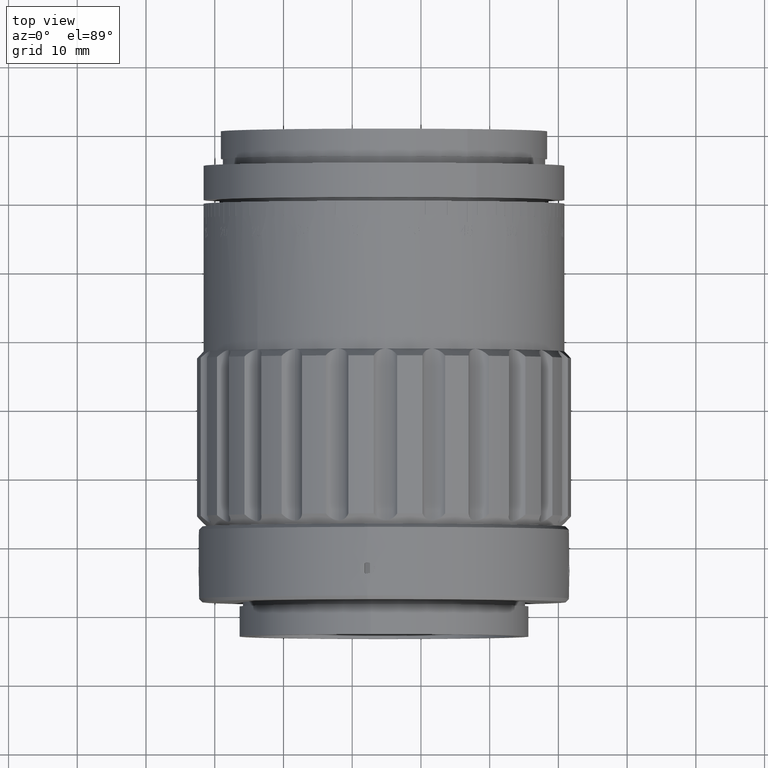
[diagram: clean part render]
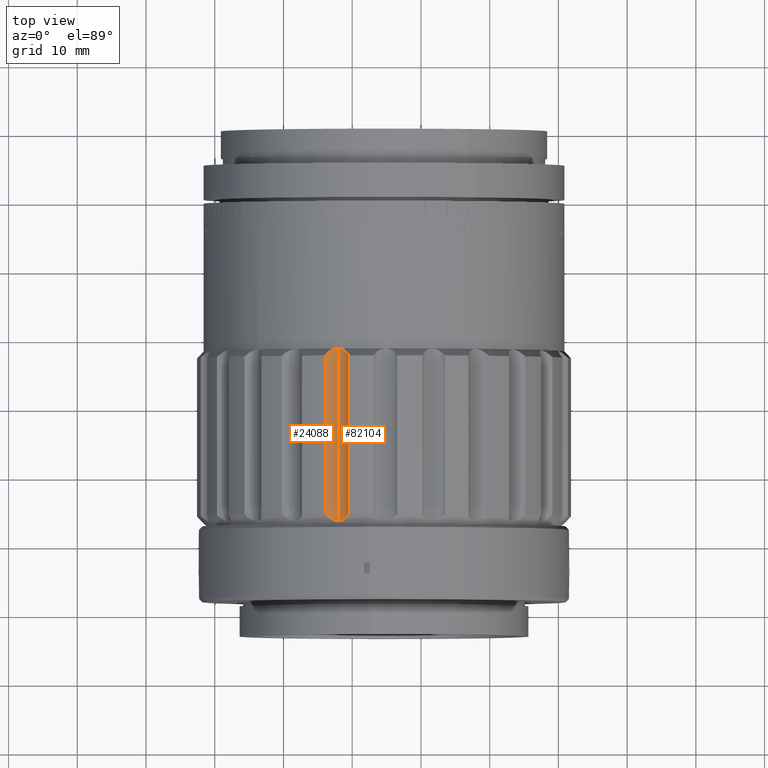
[diagram: same view with one multi-face feature highlighted, each face labeled with its STEP entity id]
A machine part, top view. The highlighted faces form ONE feature: a constant-radius fillet chain: 2 tangent blend faces with common blend radius 2 mm. The faces share edges in the B-rep.
Their STEP definitions:
[1] entity #82104 (Cylinder):
#312 = CARTESIAN_POINT ( 'NONE',  ( -14.50958583724884800, -27.69496217823255100, -22.49654680344675800 ) ) ;
#465 = VECTOR ( 'NONE', #14624, 1000.000000000000000 ) ;
#626 = CARTESIAN_POINT ( 'NONE',  ( -14.51084309510918400, -3.735120404520084800, -22.49683610694331600 ) ) ;
#908 = CARTESIAN_POINT ( 'NONE',  ( -13.83508696474228600, -3.364387262749404300, -22.48436378671806000 ) ) ;
#1470 = CARTESIAN_POINT ( 'NONE',  ( -13.83428109412283300, -28.06509218753951300, -22.48448051987046600 ) ) ;
#7043 = CARTESIAN_POINT ( 'NONE',  ( -13.74359099961318600, -28.09950435885614400, -22.49974652857751100 ) ) ;
#7341 = CARTESIAN_POINT ( 'NONE',  ( -14.35069158910880600, -3.626543446999199700, -22.47081936244077500 ) ) ;
#11193 = DIRECTION ( 'NONE',  ( 0.4999999999999946700, 0.0000000000000000000, 0.8660254037844418200 ) ) ;
#11850 = B_SPLINE_CURVE_WITH_KNOTS ( 'NONE', 3,
 ( #14065, #14635, #48126, #626, #7341, #53994, #40850, #908, #14358, #34427, #84031, #37615, #40755, #62617 ),
 .UNSPECIFIED., .F., .F.,
 ( 4, 2, 2, 2, 2, 2, 4 ),
 ( 2.979895395361943100E-007, 0.0005735843058146325400, 0.001146870622089729000, 0.001433513780227277300, 0.001720156938364825800, 0.002006800096502373800, 0.002293443254639922500 ),
 .UNSPECIFIED. ) ;
#14065 = CARTESIAN_POINT ( 'NONE',  ( -15.07094563514938200, -4.214578211897617200, -22.70306361842762000 ) ) ;
#14358 = CARTESIAN_POINT ( 'NONE',  ( -13.74427288286509500, -3.329889188454534300, -22.49960830672950600 ) ) ;
#14624 = DIRECTION ( 'NONE',  ( -0.0000000000000000000, 1.000000000000000000, -0.0000000000000000000 ) ) ;
#14635 = CARTESIAN_POINT ( 'NONE',  ( -14.94273114513976500, -4.086325021261123100, -22.63423652695954800 ) ) ;
#14906 = CARTESIAN_POINT ( 'NONE',  ( -14.09630680224473800, -27.94445593749853900, -22.46365720843577000 ) ) ;
#18173 = LINE ( 'NONE', #43413, #80708 ) ;
#18597 = EDGE_CURVE ( 'NONE', #83007, #55120, #51603, .T. ) ;
#20476 = CARTESIAN_POINT ( 'NONE',  ( -13.29152127467205300, -28.21457821189758200, -22.63702574658388800 ) ) ;
#20645 = EDGE_CURVE ( 'NONE', #21286, #32390, #18173, .T. ) ;
#21286 = VERTEX_POINT ( 'NONE', #77005 ) ;
#21976 = CARTESIAN_POINT ( 'NONE',  ( -15.07094563514938000, -27.21457821189765600, -22.70306361842762400 ) ) ;
#23204 = EDGE_LOOP ( 'NONE', ( #64703, #25300, #43904, #29746 ) ) ;
#25300 = ORIENTED_EDGE ( 'NONE', *, *, #20645, .T. ) ;
#29746 = ORIENTED_EDGE ( 'NONE', *, *, #18597, .T. ) ;
#30668 = B_SPLINE_CURVE_WITH_KNOTS ( 'NONE', 3,
 ( #74672, #20476, #41397, #7043, #1470, #74094, #14906, #48098, #312, #54813, #53679, #61521 ),
 .UNSPECIFIED., .F., .F.,
 ( 4, 2, 2, 2, 2, 4 ),
 ( 0.002293443254639914200, 0.002866010891116022600, 0.003152294709354078000, 0.003438578527592133500, 0.004011146164068248700, 0.004583713800544364800 ),
 .UNSPECIFIED. ) ;
#30998 = CARTESIAN_POINT ( 'NONE',  ( -14.12499999999989300, -2.714578211897591900, -24.46521765691053600 ) ) ;
#32390 = VERTEX_POINT ( 'NONE', #66489 ) ;
#34427 = CARTESIAN_POINT ( 'NONE',  ( -13.56429122097070600, -3.273849528159988000, -22.54319296394730200 ) ) ;
#36241 = CYLINDRICAL_SURFACE ( 'NONE', #62111, 2.000000000000002200 ) ;
#37615 = CARTESIAN_POINT ( 'NONE',  ( -13.29654098636848000, -3.222243727743241900, -22.64234901309484700 ) ) ;
#40755 = CARTESIAN_POINT ( 'NONE',  ( -13.20836514505575100, -3.214578211897683300, -22.68503596040262900 ) ) ;
#40850 = CARTESIAN_POINT ( 'NONE',  ( -14.01117599504014800, -3.441932837596967300, -22.46649913771787900 ) ) ;
#41397 = CARTESIAN_POINT ( 'NONE',  ( -13.47401003275854100, -28.18336728292409500, -22.56510966258573700 ) ) ;
#43413 = CARTESIAN_POINT ( 'NONE',  ( -13.12499999999990200, -2.714578211897591900, -22.73316684934165000 ) ) ;
#43904 = ORIENTED_EDGE ( 'NONE', *, *, #82333, .T. ) ;
#44636 = CARTESIAN_POINT ( 'NONE',  ( -15.07094563514938200, -4.214578211897617200, -22.70306361842762000 ) ) ;
#48098 = CARTESIAN_POINT ( 'NONE',  ( -14.34841600653563100, -27.80398875942939400, -22.47063614641581400 ) ) ;
#48126 = CARTESIAN_POINT ( 'NONE',  ( -14.80571327722569900, -3.964274970068866600, -22.57841341308889600 ) ) ;
#50958 = DIRECTION ( 'NONE',  ( 0.0000000000000000000, -1.000000000000000000, 0.0000000000000000000 ) ) ;
#51099 = DIRECTION ( 'NONE',  ( 0.0000000000000000000, -1.000000000000000000, 0.0000000000000000000 ) ) ;
#51603 = LINE ( 'NONE', #81668, #465 ) ;
#53679 = CARTESIAN_POINT ( 'NONE',  ( -14.94275761573031100, -27.34280492395364000, -22.63425073669322500 ) ) ;
#53994 = CARTESIAN_POINT ( 'NONE',  ( -14.09729258263544000, -3.485196456495964300, -22.46362513803483200 ) ) ;
#54813 = CARTESIAN_POINT ( 'NONE',  ( -14.80555749630510600, -27.46505317721100100, -22.57831207111323500 ) ) ;
#55120 = VERTEX_POINT ( 'NONE', #44636 ) ;
#56070 = EDGE_CURVE ( 'NONE', #55120, #21286, #11850, .T. ) ;
#61521 = CARTESIAN_POINT ( 'NONE',  ( -15.07094563514938000, -27.21457821189765600, -22.70306361842762400 ) ) ;
#62111 = AXIS2_PLACEMENT_3D ( 'NONE', #30998, #51099, #11193 ) ;
#62617 = CARTESIAN_POINT ( 'NONE',  ( -13.12499999999990400, -3.214578211897682400, -22.73316684934165000 ) ) ;
#64703 = ORIENTED_EDGE ( 'NONE', *, *, #56070, .T. ) ;
#66489 = CARTESIAN_POINT ( 'NONE',  ( -13.12499999999990200, -28.21457821189758900, -22.73316684934165000 ) ) ;
#73842 = FACE_OUTER_BOUND ( 'NONE', #23204, .T. ) ;
#74094 = CARTESIAN_POINT ( 'NONE',  ( -14.01042454763575800, -27.98758608644783400, -22.46654070602538100 ) ) ;
#74672 = CARTESIAN_POINT ( 'NONE',  ( -13.12499999999990200, -28.21457821189758900, -22.73316684934165000 ) ) ;
#77005 = CARTESIAN_POINT ( 'NONE',  ( -13.12499999999990400, -3.214578211897682400, -22.73316684934165000 ) ) ;
#80708 = VECTOR ( 'NONE', #50958, 1000.000000000000000 ) ;
#81668 = CARTESIAN_POINT ( 'NONE',  ( -15.07094563514937700, -15.71457821189758900, -22.70306361842762000 ) ) ;
#82104 = ADVANCED_FACE ( 'NONE', ( #73842 ), #36241, .F. ) ;
#82333 = EDGE_CURVE ( 'NONE', #32390, #83007, #30668, .T. ) ;
#83007 = VERTEX_POINT ( 'NONE', #21976 ) ;
#84031 = CARTESIAN_POINT ( 'NONE',  ( -13.47473048354721900, -3.252025529498176600, -22.57145315575259700 ) ) ;
[2] entity #24088 (Cylinder):
#375 = CARTESIAN_POINT ( 'NONE',  ( -12.12595701971760900, -27.21457821189765600, -24.40335358830752100 ) ) ;
#3159 = EDGE_CURVE ( 'NONE', #54061, #34607, #54388, .T. ) ;
#4182 = CARTESIAN_POINT ( 'NONE',  ( -12.45138271275700200, -3.441570337347438400, -23.36665392907049800 ) ) ;
#6230 = CARTESIAN_POINT ( 'NONE',  ( -12.15062295426916200, -27.46488145372640900, -24.11133052577059400 ) ) ;
#6510 = EDGE_CURVE ( 'NONE', #21286, #54061, #54984, .T. ) ;
#7681 = CARTESIAN_POINT ( 'NONE',  ( -13.04163485494406100, -28.21457821189758900, -22.78129773828067100 ) ) ;
#8540 = CARTESIAN_POINT ( 'NONE',  ( -12.74083217870735600, -28.15530689563528100, -23.01861726366467300 ) ) ;
#10917 = CARTESIAN_POINT ( 'NONE',  ( -12.28593373872485900, -3.625167664365871500, -23.66141083893516800 ) ) ;
#15255 = CARTESIAN_POINT ( 'NONE',  ( -13.12499999999990200, -28.21457821189758900, -22.73316684934165000 ) ) ;
#18173 = LINE ( 'NONE', #43413, #80708 ) ;
#20067 = CARTESIAN_POINT ( 'NONE',  ( -14.12499999999989300, -2.714578211897591900, -24.46521765691053600 ) ) ;
#20645 = EDGE_CURVE ( 'NONE', #21286, #32390, #18173, .T. ) ;
#21286 = VERTEX_POINT ( 'NONE', #77005 ) ;
#23147 = VECTOR ( 'NONE', #55617, 1000.000000000000000 ) ;
#24088 = ADVANCED_FACE ( 'NONE', ( #26273 ), #44009, .F. ) ;
#26273 = FACE_OUTER_BOUND ( 'NONE', #46457, .T. ) ;
#30244 = CARTESIAN_POINT ( 'NONE',  ( -12.12595701971760900, -27.21457821189765600, -24.40335358830752100 ) ) ;
#30716 = CARTESIAN_POINT ( 'NONE',  ( -12.80495319060141300, -3.245789140871167400, -22.95138981050831000 ) ) ;
#32390 = VERTEX_POINT ( 'NONE', #66489 ) ;
#34607 = VERTEX_POINT ( 'NONE', #30244 ) ;
#39422 = ORIENTED_EDGE ( 'NONE', *, *, #6510, .T. ) ;
#40589 = CARTESIAN_POINT ( 'NONE',  ( -12.45097098984451900, -27.98722358619830800, -23.36728391745856500 ) ) ;
#43413 = CARTESIAN_POINT ( 'NONE',  ( -13.12499999999990200, -2.714578211897591900, -22.73316684934165000 ) ) ;
#44009 = CYLINDRICAL_SURFACE ( 'NONE', #44850, 2.000000000000002200 ) ;
#44695 = CARTESIAN_POINT ( 'NONE',  ( -12.15061308000406900, -3.964103246584267800, -24.11114494454810900 ) ) ;
#44794 = ORIENTED_EDGE ( 'NONE', *, *, #3159, .T. ) ;
#44850 = AXIS2_PLACEMENT_3D ( 'NONE', #20067, #52985, #45967 ) ;
#45967 = DIRECTION ( 'NONE',  ( 0.4999999999999946700, 0.0000000000000000000, 0.8660254037844418200 ) ) ;
#46457 = EDGE_LOOP ( 'NONE', ( #60237, #39422, #44794, #51814 ) ) ;
#47874 = CARTESIAN_POINT ( 'NONE',  ( -12.55448674485730400, -28.06476916104587000, -23.22371866839294800 ) ) ;
#48731 = CARTESIAN_POINT ( 'NONE',  ( -12.81008659143830300, -28.17713089429709300, -22.95518548577690900 ) ) ;
#50824 = CARTESIAN_POINT ( 'NONE',  ( -12.40594440328815800, -3.484700486296734600, -23.43958839450134900 ) ) ;
#50958 = DIRECTION ( 'NONE',  ( 0.0000000000000000000, -1.000000000000000000, 0.0000000000000000000 ) ) ;
#51403 = CARTESIAN_POINT ( 'NONE',  ( -12.95847872532776000, -3.214578211897682400, -22.82930795209941600 ) ) ;
#51814 = ORIENTED_EDGE ( 'NONE', *, *, #63633, .T. ) ;
#52985 = DIRECTION ( 'NONE',  ( 0.0000000000000000000, -1.000000000000000000, 0.0000000000000000000 ) ) ;
#54026 = CARTESIAN_POINT ( 'NONE',  ( -12.61309592739431900, -28.09926723534073600, -23.15269362647166000 ) ) ;
#54061 = VERTEX_POINT ( 'NONE', #68853 ) ;
#54388 = LINE ( 'NONE', #56485, #23147 ) ;
#54984 = B_SPLINE_CURVE_WITH_KNOTS ( 'NONE', 3,
 ( #71559, #51403, #30716, #84655, #64818, #4182, #50824, #10917, #63962, #44695, #57801, #71283 ),
 .UNSPECIFIED., .F., .F.,
 ( 4, 2, 2, 2, 2, 4 ),
 ( 0.002293443254639922500, 0.002866010891116034300, 0.003152294709354090200, 0.003438578527592146500, 0.004011146164068264300, 0.004583713800544381300 ),
 .UNSPECIFIED. ) ;
#55154 = CARTESIAN_POINT ( 'NONE',  ( -12.96057895350913600, -28.20691269605202900, -22.83631678320368500 ) ) ;
#55617 = DIRECTION ( 'NONE',  ( 0.0000000000000000000, -1.000000000000000000, 0.0000000000000000000 ) ) ;
#56485 = CARTESIAN_POINT ( 'NONE',  ( -12.12595701971760500, -15.71457821189758900, -24.40335358830751400 ) ) ;
#57801 = CARTESIAN_POINT ( 'NONE',  ( -12.13045732573753100, -4.086351499841622800, -24.25793306616258200 ) ) ;
#60237 = ORIENTED_EDGE ( 'NONE', *, *, #20645, .F. ) ;
#63633 = EDGE_CURVE ( 'NONE', #34607, #32390, #75424, .T. ) ;
#63962 = CARTESIAN_POINT ( 'NONE',  ( -12.22778811058579700, -3.734194245562724400, -23.81394333517192100 ) ) ;
#64818 = CARTESIAN_POINT ( 'NONE',  ( -12.55499077404247800, -3.364064236255758900, -23.22307913054053000 ) ) ;
#66328 = CARTESIAN_POINT ( 'NONE',  ( -12.13045825504245700, -27.34283140253414100, -24.25790303709187900 ) ) ;
#66489 = CARTESIAN_POINT ( 'NONE',  ( -13.12499999999990200, -28.21457821189758900, -22.73316684934165000 ) ) ;
#68853 = CARTESIAN_POINT ( 'NONE',  ( -12.12595701971761000, -4.214578211897617200, -24.40335358830751700 ) ) ;
#71283 = CARTESIAN_POINT ( 'NONE',  ( -12.12595701971761000, -4.214578211897617200, -24.40335358830751700 ) ) ;
#71559 = CARTESIAN_POINT ( 'NONE',  ( -13.12499999999990400, -3.214578211897682400, -22.73316684934165000 ) ) ;
#73026 = CARTESIAN_POINT ( 'NONE',  ( -12.22741002583305400, -27.69403601927518800, -23.81517680416637400 ) ) ;
#75424 = B_SPLINE_CURVE_WITH_KNOTS ( 'NONE', 3,
 ( #375, #66328, #6230, #73026, #86405, #80560, #40589, #47874, #54026, #8540, #48731, #55154, #7681, #15255 ),
 .UNSPECIFIED., .F., .F.,
 ( 4, 2, 2, 2, 2, 2, 4 ),
 ( 2.979895395302263800E-007, 0.0005735843058146337400, 0.001146870622089737300, 0.001433513780227281600, 0.001720156938364825800, 0.002006800096502369900, 0.002293443254639914200 ),
 .UNSPECIFIED. ) ;
#77005 = CARTESIAN_POINT ( 'NONE',  ( -13.12499999999990400, -3.214578211897682400, -22.73316684934165000 ) ) ;
#80560 = CARTESIAN_POINT ( 'NONE',  ( -12.40542373931088300, -27.94395996729930700, -23.44042607016178800 ) ) ;
#80708 = VECTOR ( 'NONE', #50958, 1000.000000000000000 ) ;
#84655 = CARTESIAN_POINT ( 'NONE',  ( -12.61355657265199200, -3.329652064939129000, -23.15217220917707400 ) ) ;
#86405 = CARTESIAN_POINT ( 'NONE',  ( -12.28495461717027800, -27.80261297679607300, -23.66347315926443800 ) ) ;